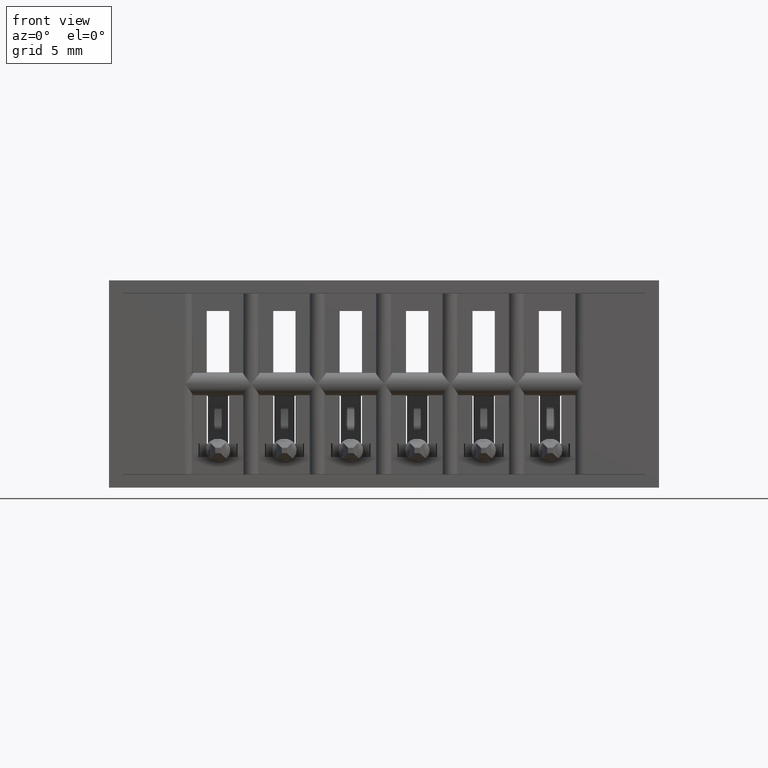
[diagram: clean part render]
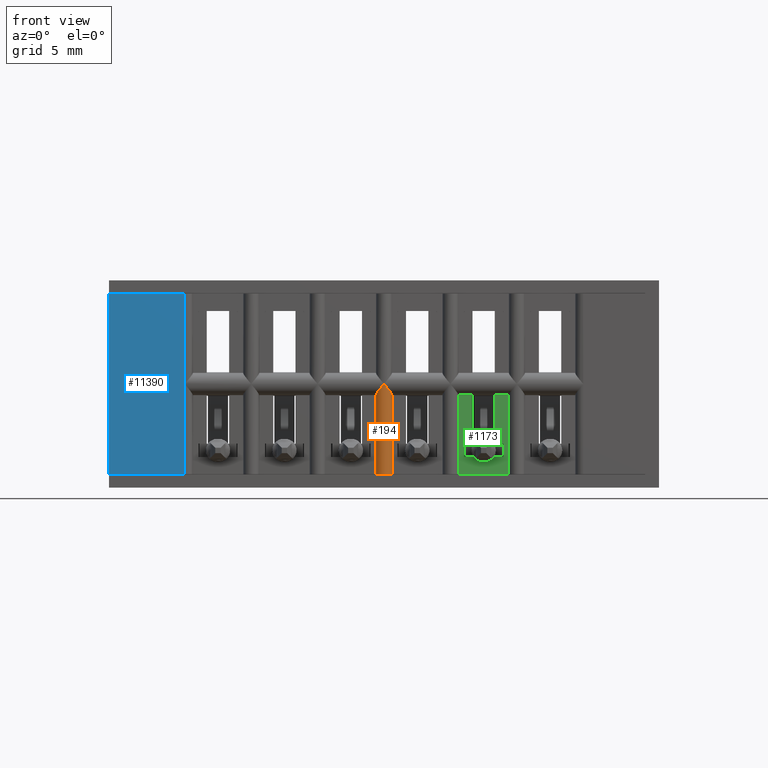
[diagram: same view with three faces highlighted in distinct colors, each labeled with its STEP entity id]
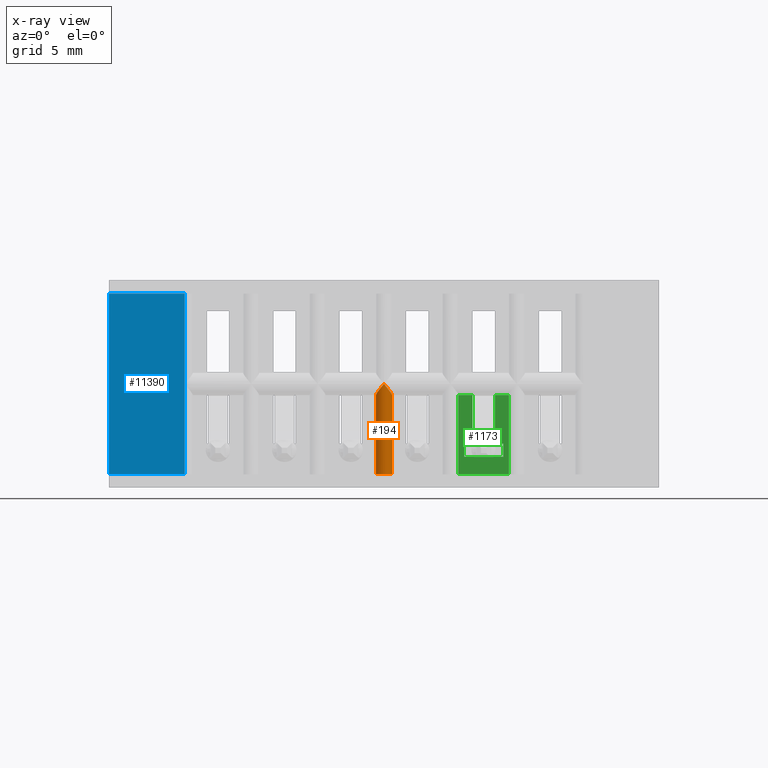
[diagram: x-ray of the same camera — body ghosted, the three highlighted faces saturated]
A machine part, front view with three faces highlighted in distinct colors.
The next image is the same camera in x-ray (body ghosted, the three faces saturated) — at least one of them is partly hidden behind the body in this view.
Their STEP definitions:

[orange] entity #194 — the highlighted cylindrical surface (edge-blend (fillet) strip) has radius 0.381 mm, axis along (0, 0, 1).
#194 = ADVANCED_FACE ( 'NONE', ( #1490 ), #7926, .T. ) ;
#488 = VECTOR ( 'NONE', #4854, 39.37007874015748143 ) ;
#1146 = EDGE_LOOP ( 'NONE', ( #6188, #12012, #9714, #5970, #10065 ) ) ;
#1341 = CARTESIAN_POINT ( 'NONE',  ( 0.5174999999999996270, 0.01499999999999997169, -0.3900000000000000133 ) ) ;
#1360 = B_SPLINE_CURVE_WITH_KNOTS ( 'NONE', 3,
 ( #9326, #2752, #4815, #11217, #13604, #10267, #12572, #1383 ),
 .UNSPECIFIED., .F., .F.,
 ( 4, 2, 2, 4 ),
 ( 2.168404344971008627E-19, 0.0002018944217551003689, 0.0004037888435102004667, 0.0008075776870204016923 ),
 .UNSPECIFIED. ) ;
#1383 = CARTESIAN_POINT ( 'NONE',  ( 0.5174999999999996270, -1.387266812124265831E-17, -0.1949999999999995626 ) ) ;
#1490 = FACE_OUTER_BOUND ( 'NONE', #1146, .T. ) ;
#1685 = EDGE_CURVE ( 'NONE', #12020, #4972, #2740, .T. ) ;
#1761 = CARTESIAN_POINT ( 'NONE',  ( 0.5174999999999996270, 0.01499999999999997169, -0.3649999999999999911 ) ) ;
#1958 = CARTESIAN_POINT ( 'NONE',  ( 0.5024999999999996136, 0.01244425316742273253, -0.2149988828447379485 ) ) ;
#2452 = EDGE_CURVE ( 'NONE', #3380, #4972, #1360, .T. ) ;
#2472 = VERTEX_POINT ( 'NONE', #11291 ) ;
#2740 = B_SPLINE_CURVE_WITH_KNOTS ( 'NONE', 3,
 ( #10548, #1958, #12846, #8304, #2818, #2957, #5163, #4946 ),
 .UNSPECIFIED., .F., .F.,
 ( 4, 2, 2, 4 ),
 ( 1.626303258728256651E-19, 0.0002018944217551001791, 0.0004037888435102001956, 0.0008075776870204013670 ),
 .UNSPECIFIED. ) ;
#2752 = CARTESIAN_POINT ( 'NONE',  ( 0.5324999999999995293, 0.01244425316742273253, -0.2149988828447379485 ) ) ;
#2818 = CARTESIAN_POINT ( 'NONE',  ( 0.5064099099108576585, 0.004728007783811031921, -0.2088061091034332795 ) ) ;
#2862 = LINE ( 'NONE', #12522, #5048 ) ;
#2957 = CARTESIAN_POINT ( 'NONE',  ( 0.5107066941780518121, 0.001112354947348568809, -0.2032114395158498565 ) ) ;
#3380 = VERTEX_POINT ( 'NONE', #11038 ) ;
#3714 = EDGE_CURVE ( 'NONE', #2472, #3380, #2862, .T. ) ;
#3779 = DIRECTION ( 'NONE',  ( 1.000000000000000000, 0.0000000000000000000, 0.0000000000000000000 ) ) ;
#3996 = DIRECTION ( 'NONE',  ( -0.0000000000000000000, -0.0000000000000000000, 1.000000000000000000 ) ) ;
#4815 = CARTESIAN_POINT ( 'NONE',  ( 0.5318510686097367435, 0.01013343672870415171, -0.2136884110686218807 ) ) ;
#4854 = DIRECTION ( 'NONE',  ( -0.0000000000000000000, -0.0000000000000000000, 1.000000000000000000 ) ) ;
#4870 = AXIS2_PLACEMENT_3D ( 'NONE', #1341, #5781, #3779 ) ;
#4946 = CARTESIAN_POINT ( 'NONE',  ( 0.5174999999999996270, -1.387266812124265831E-17, -0.1949999999999995626 ) ) ;
#4972 = VERTEX_POINT ( 'NONE', #5017 ) ;
#5017 = CARTESIAN_POINT ( 'NONE',  ( 0.5174999999999996270, -1.387266812124265831E-17, -0.1949999999999995626 ) ) ;
#5048 = VECTOR ( 'NONE', #3996, 39.37007874015748143 ) ;
#5163 = CARTESIAN_POINT ( 'NONE',  ( 0.5141260018090547668, -1.677392017594145886E-17, -0.1990861248552169838 ) ) ;
#5781 = DIRECTION ( 'NONE',  ( -0.0000000000000000000, -0.0000000000000000000, 1.000000000000000000 ) ) ;
#5970 = ORIENTED_EDGE ( 'NONE', *, *, #7211, .T. ) ;
#6188 = ORIENTED_EDGE ( 'NONE', *, *, #2452, .T. ) ;
#6720 = LINE ( 'NONE', #7858, #488 ) ;
#6967 = CIRCLE ( 'NONE', #10666, 0.01499999999999997689 ) ;
#7030 = DIRECTION ( 'NONE',  ( 1.000000000000000000, 0.0000000000000000000, 0.0000000000000000000 ) ) ;
#7211 = EDGE_CURVE ( 'NONE', #10736, #2472, #6967, .T. ) ;
#7469 = CARTESIAN_POINT ( 'NONE',  ( 0.5024999999999996136, 0.01499999999999997169, -0.2158566536146137582 ) ) ;
#7858 = CARTESIAN_POINT ( 'NONE',  ( 0.5024999999999996136, 0.01499999999999997169, -0.3900000000000000133 ) ) ;
#7859 = EDGE_CURVE ( 'NONE', #10736, #12020, #6720, .T. ) ;
#7926 = CYLINDRICAL_SURFACE ( 'NONE', #4870, 0.01499999999999997689 ) ;
#8304 = CARTESIAN_POINT ( 'NONE',  ( 0.5050974558600919151, 0.006292904779862461273, -0.2105999740989204783 ) ) ;
#9326 = CARTESIAN_POINT ( 'NONE',  ( 0.5324999999999997513, 0.01499999999999997169, -0.2158566536146137582 ) ) ;
#9714 = ORIENTED_EDGE ( 'NONE', *, *, #7859, .F. ) ;
#10065 = ORIENTED_EDGE ( 'NONE', *, *, #3714, .T. ) ;
#10267 = CARTESIAN_POINT ( 'NONE',  ( 0.5242933058219477749, 0.001112354947348564689, -0.2032114395158498843 ) ) ;
#10548 = CARTESIAN_POINT ( 'NONE',  ( 0.5024999999999996136, 0.01499999999999997169, -0.2158566536146137582 ) ) ;
#10666 = AXIS2_PLACEMENT_3D ( 'NONE', #1761, #11370, #7030 ) ;
#10736 = VERTEX_POINT ( 'NONE', #10995 ) ;
#10995 = CARTESIAN_POINT ( 'NONE',  ( 0.5024999999999996136, 0.01499999999999997169, -0.3649999999999999911 ) ) ;
#11038 = CARTESIAN_POINT ( 'NONE',  ( 0.5324999999999997513, 0.01499999999999997169, -0.2158566536146137582 ) ) ;
#11217 = CARTESIAN_POINT ( 'NONE',  ( 0.5299025441399073388, 0.006292904779862461273, -0.2105999740989204783 ) ) ;
#11291 = CARTESIAN_POINT ( 'NONE',  ( 0.5324999999999997513, 0.01499999999999997169, -0.3649999999999999911 ) ) ;
#11370 = DIRECTION ( 'NONE',  ( 0.0000000000000000000, 0.0000000000000000000, 1.000000000000000000 ) ) ;
#12012 = ORIENTED_EDGE ( 'NONE', *, *, #1685, .F. ) ;
#12020 = VERTEX_POINT ( 'NONE', #7469 ) ;
#12522 = CARTESIAN_POINT ( 'NONE',  ( 0.5324999999999997513, 0.01499999999999997169, -0.3900000000000000133 ) ) ;
#12572 = CARTESIAN_POINT ( 'NONE',  ( 0.5208739981909346062, -1.087136774822448878E-17, -0.1990861248552253659 ) ) ;
#12846 = CARTESIAN_POINT ( 'NONE',  ( 0.5031489313902628435, 0.01013343672870415171, -0.2136884110686218252 ) ) ;
#13604 = CARTESIAN_POINT ( 'NONE',  ( 0.5285900900891418175, 0.004728007783811031053, -0.2088061091034332517 ) ) ;

[blue] entity #11390 — the highlighted planar face has unit normal (0, -1, 0).
#380 = LINE ( 'NONE', #2471, #3215 ) ;
#571 = DIRECTION ( 'NONE',  ( -0.0000000000000000000, -0.0000000000000000000, 1.000000000000000000 ) ) ;
#966 = VECTOR ( 'NONE', #571, 39.37007874015748143 ) ;
#1099 = EDGE_CURVE ( 'NONE', #6616, #12338, #380, .T. ) ;
#1355 = CARTESIAN_POINT ( 'NONE',  ( 0.1424999999999997102, 0.0000000000000000000, -0.3900000000000000133 ) ) ;
#1371 = LINE ( 'NONE', #9983, #2567 ) ;
#1740 = ORIENTED_EDGE ( 'NONE', *, *, #12127, .T. ) ;
#2028 = CARTESIAN_POINT ( 'NONE',  ( 0.1424999999999997102, -1.440622965408893082E-17, -0.1949999999999995626 ) ) ;
#2094 = VECTOR ( 'NONE', #8878, 39.37007874015748143 ) ;
#2471 = CARTESIAN_POINT ( 'NONE',  ( 1.034999999999999920, 0.0000000000000000000, -0.02500000000000000486 ) ) ;
#2540 = AXIS2_PLACEMENT_3D ( 'NONE', #3378, #5797, #12063 ) ;
#2567 = VECTOR ( 'NONE', #6952, 39.37007874015748143 ) ;
#2638 = VECTOR ( 'NONE', #6358, 39.37007874015748143 ) ;
#3215 = VECTOR ( 'NONE', #11287, 39.37007874015748143 ) ;
#3378 = CARTESIAN_POINT ( 'NONE',  ( 0.0000000000000000000, 0.0000000000000000000, -0.3900000000000000133 ) ) ;
#3854 = ORIENTED_EDGE ( 'NONE', *, *, #1099, .T. ) ;
#4386 = EDGE_CURVE ( 'NONE', #11131, #6616, #4782, .T. ) ;
#4447 = PLANE ( 'NONE',  #2540 ) ;
#4782 = LINE ( 'NONE', #1355, #966 ) ;
#5797 = DIRECTION ( 'NONE',  ( 0.0000000000000000000, -1.000000000000000000, 0.0000000000000000000 ) ) ;
#6358 = DIRECTION ( 'NONE',  ( -1.000000000000000000, -0.0000000000000000000, -0.0000000000000000000 ) ) ;
#6572 = EDGE_CURVE ( 'NONE', #9796, #8483, #14076, .T. ) ;
#6616 = VERTEX_POINT ( 'NONE', #8860 ) ;
#6952 = DIRECTION ( 'NONE',  ( -0.0000000000000000000, -0.0000000000000000000, 1.000000000000000000 ) ) ;
#7631 = ORIENTED_EDGE ( 'NONE', *, *, #6572, .F. ) ;
#7789 = FACE_OUTER_BOUND ( 'NONE', #13949, .T. ) ;
#8483 = VERTEX_POINT ( 'NONE', #8682 ) ;
#8682 = CARTESIAN_POINT ( 'NONE',  ( 0.0000000000000000000, 0.0000000000000000000, -0.3649999999999999911 ) ) ;
#8860 = CARTESIAN_POINT ( 'NONE',  ( 0.1424999999999997102, 0.0000000000000000000, -0.02500000000000000486 ) ) ;
#8878 = DIRECTION ( 'NONE',  ( -0.0000000000000000000, -0.0000000000000000000, 1.000000000000000000 ) ) ;
#9546 = CARTESIAN_POINT ( 'NONE',  ( 0.0000000000000000000, 0.0000000000000000000, -0.02500000000000000486 ) ) ;
#9756 = ORIENTED_EDGE ( 'NONE', *, *, #4386, .T. ) ;
#9796 = VERTEX_POINT ( 'NONE', #12323 ) ;
#9983 = CARTESIAN_POINT ( 'NONE',  ( 0.1424999999999997102, 0.0000000000000000000, -0.3900000000000000133 ) ) ;
#11131 = VERTEX_POINT ( 'NONE', #2028 ) ;
#11287 = DIRECTION ( 'NONE',  ( -1.000000000000000000, -0.0000000000000000000, -0.0000000000000000000 ) ) ;
#11390 = ADVANCED_FACE ( 'NONE', ( #7789 ), #4447, .T. ) ;
#11649 = ORIENTED_EDGE ( 'NONE', *, *, #12504, .F. ) ;
#11927 = CARTESIAN_POINT ( 'NONE',  ( 0.0000000000000000000, 0.0000000000000000000, 0.0000000000000000000 ) ) ;
#12063 = DIRECTION ( 'NONE',  ( 0.0000000000000000000, -0.0000000000000000000, -1.000000000000000000 ) ) ;
#12127 = EDGE_CURVE ( 'NONE', #9796, #11131, #1371, .T. ) ;
#12323 = CARTESIAN_POINT ( 'NONE',  ( 0.1424999999999997102, 0.0000000000000000000, -0.3649999999999999911 ) ) ;
#12338 = VERTEX_POINT ( 'NONE', #9546 ) ;
#12504 = EDGE_CURVE ( 'NONE', #8483, #12338, #14159, .T. ) ;
#13057 = CARTESIAN_POINT ( 'NONE',  ( 1.034999999999999920, 0.0000000000000000000, -0.3649999999999999911 ) ) ;
#13949 = EDGE_LOOP ( 'NONE', ( #1740, #9756, #3854, #11649, #7631 ) ) ;
#14076 = LINE ( 'NONE', #13057, #2638 ) ;
#14159 = LINE ( 'NONE', #11927, #2094 ) ;

[green] entity #1173 — the highlighted planar face has unit normal (0, 1, 0).
#6 = VECTOR ( 'NONE', #12779, 39.37007874015748143 ) ;
#90 = CARTESIAN_POINT ( 'NONE',  ( 0.7259999999999995346, 0.01499999999999994220, -0.3075000000000000511 ) ) ;
#171 = ORIENTED_EDGE ( 'NONE', *, *, #12214, .F. ) ;
#323 = DIRECTION ( 'NONE',  ( -0.0000000000000000000, 4.596859604723521792E-16, -1.000000000000000000 ) ) ;
#635 = DIRECTION ( 'NONE',  ( 4.614608097405849258E-16, -4.596859604723521792E-16, 1.000000000000000000 ) ) ;
#810 = CARTESIAN_POINT ( 'NONE',  ( 0.7524999999999997247, 0.01499999999999997169, -0.2158566536146137582 ) ) ;
#882 = ORIENTED_EDGE ( 'NONE', *, *, #5387, .F. ) ;
#935 = VERTEX_POINT ( 'NONE', #8829 ) ;
#980 = VECTOR ( 'NONE', #5287, 39.37007874015748143 ) ;
#1167 = CARTESIAN_POINT ( 'NONE',  ( 0.7419999999999996598, 0.01499999999999994220, -0.3075000000000000511 ) ) ;
#1173 = ADVANCED_FACE ( 'NONE', ( #5750 ), #3748, .F. ) ;
#1180 = VERTEX_POINT ( 'NONE', #810 ) ;
#1328 = ORIENTED_EDGE ( 'NONE', *, *, #10004, .F. ) ;
#1421 = EDGE_CURVE ( 'NONE', #11897, #1180, #9770, .T. ) ;
#1647 = ORIENTED_EDGE ( 'NONE', *, *, #12916, .T. ) ;
#1711 = VERTEX_POINT ( 'NONE', #9536 ) ;
#1876 = CARTESIAN_POINT ( 'NONE',  ( 0.6679999999999995941, 0.01499999999999994220, -0.3075000000000000511 ) ) ;
#1992 = LINE ( 'NONE', #3279, #10967 ) ;
#2017 = EDGE_CURVE ( 'NONE', #2691, #13589, #3693, .T. ) ;
#2453 = EDGE_CURVE ( 'NONE', #10755, #5070, #9049, .T. ) ;
#2691 = VERTEX_POINT ( 'NONE', #13163 ) ;
#2748 = CARTESIAN_POINT ( 'NONE',  ( 0.6839999999999997193, 0.01499999999999979475, -3.715354659355037839E-17 ) ) ;
#2816 = ORIENTED_EDGE ( 'NONE', *, *, #5274, .F. ) ;
#3279 = CARTESIAN_POINT ( 'NONE',  ( 0.7259999999999997566, 0.01499999999999997169, -5.373951300518784932E-17 ) ) ;
#3301 = DIRECTION ( 'NONE',  ( 1.000000000000000000, 0.0000000000000000000, -2.307304048702924629E-16 ) ) ;
#3382 = EDGE_CURVE ( 'NONE', #1180, #12434, #4225, .T. ) ;
#3386 = DIRECTION ( 'NONE',  ( -0.0000000000000000000, -0.0000000000000000000, 1.000000000000000000 ) ) ;
#3693 = LINE ( 'NONE', #10280, #5943 ) ;
#3748 = PLANE ( 'NONE',  #6384 ) ;
#3825 = ORIENTED_EDGE ( 'NONE', *, *, #2453, .T. ) ;
#3863 = CARTESIAN_POINT ( 'NONE',  ( 0.6574999999999997513, 0.01499999999999997169, -0.3900000000000000133 ) ) ;
#3878 = CARTESIAN_POINT ( 'NONE',  ( 0.6839999999999997193, 0.01499999999999993526, -0.3075000000000000511 ) ) ;
#3912 = DIRECTION ( 'NONE',  ( 2.385081683068867604E-16, 0.0000000000000000000, 1.000000000000000000 ) ) ;
#4036 = CARTESIAN_POINT ( 'NONE',  ( 0.7259999999999997566, 0.01499999999999997169, -0.2158566536146137582 ) ) ;
#4147 = VECTOR ( 'NONE', #9886, 39.37007874015748143 ) ;
#4225 = LINE ( 'NONE', #13203, #5261 ) ;
#4496 = DIRECTION ( 'NONE',  ( -1.000000000000000000, -0.0000000000000000000, 2.307304048702924629E-16 ) ) ;
#4519 = CARTESIAN_POINT ( 'NONE',  ( 0.7524999999999997247, 0.01499999999999997169, -0.3900000000000000133 ) ) ;
#4566 = EDGE_CURVE ( 'NONE', #9696, #7488, #6353, .T. ) ;
#4662 = EDGE_CURVE ( 'NONE', #12515, #10755, #7578, .T. ) ;
#4953 = LINE ( 'NONE', #3878, #6 ) ;
#4970 = CARTESIAN_POINT ( 'NONE',  ( 0.6839999999994050839, 0.01499999999999997169, -0.2158566536146137582 ) ) ;
#5036 = ORIENTED_EDGE ( 'NONE', *, *, #9245, .T. ) ;
#5070 = VERTEX_POINT ( 'NONE', #7522 ) ;
#5261 = VECTOR ( 'NONE', #4496, 39.37007874015748143 ) ;
#5274 = EDGE_CURVE ( 'NONE', #935, #1711, #10465, .T. ) ;
#5276 = VECTOR ( 'NONE', #323, 39.37007874015748143 ) ;
#5287 = DIRECTION ( 'NONE',  ( 1.000000000000000000, 6.287160262869416356E-33, -2.444074818391192251E-16 ) ) ;
#5298 = CARTESIAN_POINT ( 'NONE',  ( 0.6839999999999996083, 0.01499999999999996302, -0.3649999999999999911 ) ) ;
#5387 = EDGE_CURVE ( 'NONE', #9696, #5070, #10827, .T. ) ;
#5750 = FACE_OUTER_BOUND ( 'NONE', #14065, .T. ) ;
#5755 = CARTESIAN_POINT ( 'NONE',  ( 0.7419999999999996598, 0.01499999999999979475, -3.715354659355037839E-17 ) ) ;
#5943 = VECTOR ( 'NONE', #3912, 39.37007874015748143 ) ;
#6071 = ORIENTED_EDGE ( 'NONE', *, *, #2017, .T. ) ;
#6353 = LINE ( 'NONE', #11767, #13342 ) ;
#6384 = AXIS2_PLACEMENT_3D ( 'NONE', #2748, #8105, #12496 ) ;
#6408 = ORIENTED_EDGE ( 'NONE', *, *, #3382, .T. ) ;
#6629 = VECTOR ( 'NONE', #3301, 39.37007874015748143 ) ;
#6954 = ORIENTED_EDGE ( 'NONE', *, *, #4662, .T. ) ;
#7488 = VERTEX_POINT ( 'NONE', #1876 ) ;
#7522 = CARTESIAN_POINT ( 'NONE',  ( 0.7419999999999996598, 0.01499999999999994914, -0.3325000000000000178 ) ) ;
#7578 = LINE ( 'NONE', #8581, #980 ) ;
#7619 = VECTOR ( 'NONE', #8293, 39.37007874015748143 ) ;
#8105 = DIRECTION ( 'NONE',  ( 1.060635277729750645E-31, 1.000000000000000000, 4.596859604723521792E-16 ) ) ;
#8293 = DIRECTION ( 'NONE',  ( -0.0000000000000000000, -0.0000000000000000000, 1.000000000000000000 ) ) ;
#8581 = CARTESIAN_POINT ( 'NONE',  ( 0.6839999999999996083, 0.01499999999999993526, -0.3074999999999999956 ) ) ;
#8829 = CARTESIAN_POINT ( 'NONE',  ( 0.6574999999999997513, 0.01499999999999997169, -0.3649999999999999911 ) ) ;
#9049 = LINE ( 'NONE', #5755, #5276 ) ;
#9245 = EDGE_CURVE ( 'NONE', #12434, #12515, #1992, .T. ) ;
#9536 = CARTESIAN_POINT ( 'NONE',  ( 0.6574999999999997513, 0.01499999999999997169, -0.2158566536146137305 ) ) ;
#9696 = VERTEX_POINT ( 'NONE', #10854 ) ;
#9770 = LINE ( 'NONE', #4519, #10527 ) ;
#9810 = CARTESIAN_POINT ( 'NONE',  ( 0.6839999999999996083, 0.01499999999999994914, -0.3325000000000000178 ) ) ;
#9886 = DIRECTION ( 'NONE',  ( 1.000000000000000000, -0.0000000000000000000, -2.307304048702925122E-16 ) ) ;
#10004 = EDGE_CURVE ( 'NONE', #1711, #13589, #11035, .T. ) ;
#10280 = CARTESIAN_POINT ( 'NONE',  ( 0.6839999999999997193, 0.01499999999999997169, -4.404883600063556642E-17 ) ) ;
#10465 = LINE ( 'NONE', #3863, #7619 ) ;
#10527 = VECTOR ( 'NONE', #3386, 39.37007874015748143 ) ;
#10755 = VERTEX_POINT ( 'NONE', #1167 ) ;
#10827 = LINE ( 'NONE', #9810, #12441 ) ;
#10854 = CARTESIAN_POINT ( 'NONE',  ( 0.6679999999999995941, 0.01499999999999993873, -0.3324999999999999623 ) ) ;
#10960 = CARTESIAN_POINT ( 'NONE',  ( -19685.03937007874265, 0.01499999999999989536, -0.2158566536100716138 ) ) ;
#10967 = VECTOR ( 'NONE', #14044, 39.37007874015748143 ) ;
#11035 = LINE ( 'NONE', #10960, #6629 ) ;
#11579 = CARTESIAN_POINT ( 'NONE',  ( 0.7524999999999997247, 0.01499999999999997169, -0.3649999999999999911 ) ) ;
#11767 = CARTESIAN_POINT ( 'NONE',  ( 0.6679999999999997051, 0.01499999999999979475, -2.977017363770099769E-17 ) ) ;
#11843 = LINE ( 'NONE', #5298, #4147 ) ;
#11897 = VERTEX_POINT ( 'NONE', #11579 ) ;
#12214 = EDGE_CURVE ( 'NONE', #2691, #7488, #4953, .T. ) ;
#12434 = VERTEX_POINT ( 'NONE', #4036 ) ;
#12441 = VECTOR ( 'NONE', #13053, 39.37007874015748143 ) ;
#12496 = DIRECTION ( 'NONE',  ( 0.0000000000000000000, -4.596859604723521792E-16, 1.000000000000000000 ) ) ;
#12515 = VERTEX_POINT ( 'NONE', #90 ) ;
#12779 = DIRECTION ( 'NONE',  ( -1.000000000000000000, 6.287160262869394461E-33, 2.170533279014657500E-16 ) ) ;
#12916 = EDGE_CURVE ( 'NONE', #935, #11897, #11843, .T. ) ;
#13053 = DIRECTION ( 'NONE',  ( 1.000000000000000000, -0.0000000000000000000, -2.307304048702925122E-16 ) ) ;
#13163 = CARTESIAN_POINT ( 'NONE',  ( 0.6839999999999996083, 0.01499999999999994220, -0.3075000000000000511 ) ) ;
#13203 = CARTESIAN_POINT ( 'NONE',  ( 19685.03937007874265, 0.01499999999999989536, -0.2158566536191554863 ) ) ;
#13342 = VECTOR ( 'NONE', #635, 39.37007874015748143 ) ;
#13589 = VERTEX_POINT ( 'NONE', #4970 ) ;
#13656 = ORIENTED_EDGE ( 'NONE', *, *, #4566, .T. ) ;
#14044 = DIRECTION ( 'NONE',  ( -2.385081683068867604E-16, 0.0000000000000000000, -1.000000000000000000 ) ) ;
#14056 = ORIENTED_EDGE ( 'NONE', *, *, #1421, .T. ) ;
#14065 = EDGE_LOOP ( 'NONE', ( #14056, #6408, #5036, #6954, #3825, #882, #13656, #171, #6071, #1328, #2816, #1647 ) ) ;